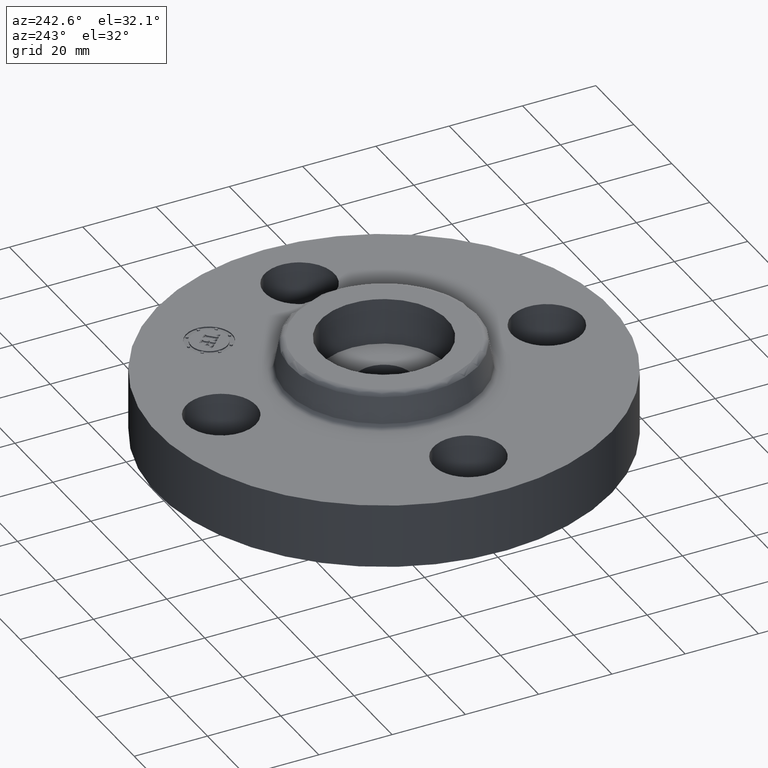
[diagram: clean part render]
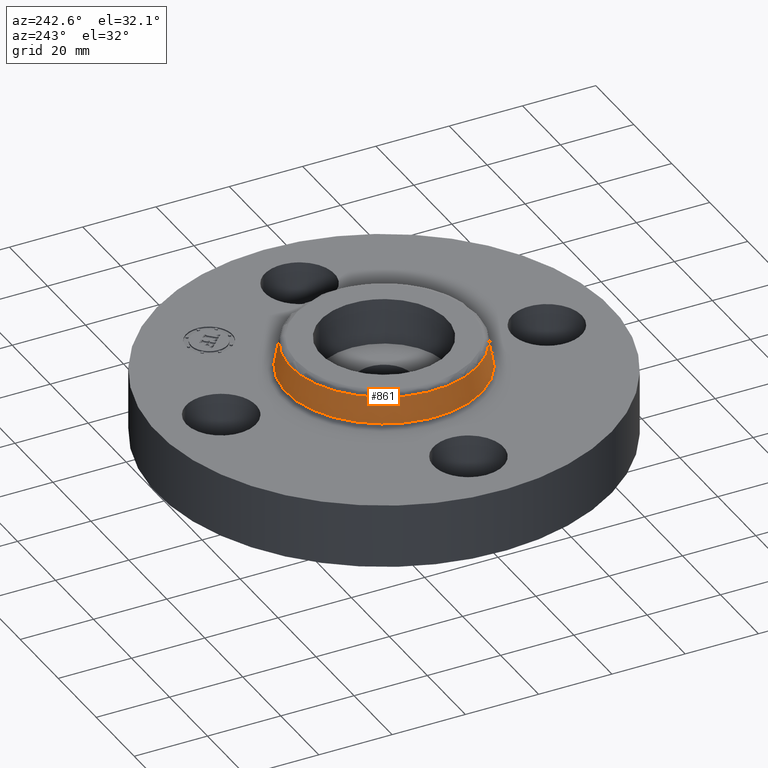
[diagram: same view with one face highlighted and labeled with its STEP entity id]
A machine part, auxiliary view. The second image highlights one B-rep face of the part: STEP entity #861.
In plain terms, the highlighted conical surface has half-angle 10 deg.
Its self-contained STEP definition (entity closure, byte-faithful):
#420=AXIS2_PLACEMENT_3D('Circle Axis2P3D',#418,#419,$) ;
#848=AXIS2_PLACEMENT_3D('Cone Axis2P3D',#845,#846,#847) ;
#852=AXIS2_PLACEMENT_3D('Circle Axis2P3D',#850,#851,$) ;
#384=CARTESIAN_POINT('Vertex',(0.481104249261,0.880655421136,1.01041889066)) ;
#386=CARTESIAN_POINT('Vertex',(-0.481104249261,-0.880655421136,1.01041889066)) ;
#418=CARTESIAN_POINT('Axis2P3D Location',(0.,0.,1.01041889066)) ;
#816=CARTESIAN_POINT('Vertex',(0.503999699238,0.922565261201,0.739581109345)) ;
#818=CARTESIAN_POINT('Vertex',(-0.503999699238,-0.922565261201,0.739581109344)) ;
#821=CARTESIAN_POINT('Line Origine',(0.492551974248,0.901610341165,0.874999999999)) ;
#826=CARTESIAN_POINT('Line Origine',(-0.492551974248,-0.901610341165,0.874999999999)) ;
#845=CARTESIAN_POINT('Axis2P3D Location',(0.,0.,1.01041889066)) ;
#850=CARTESIAN_POINT('Axis2P3D Location',(0.,0.,0.739581109343)) ;
#419=DIRECTION('Axis2P3D Direction',(-0.,0.,-0.0393700787402)) ;
#822=DIRECTION('Vector Direction',(0.00327761303565,0.00599963041827,-0.03877195878)) ;
#827=DIRECTION('Vector Direction',(-0.00327761303565,-0.00599963041827,-0.03877195878)) ;
#846=DIRECTION('Axis2P3D Direction',(0.,0.,-0.0393700787402)) ;
#847=DIRECTION('Axis2P3D XDirection',(-0.0188750212049,-0.0345504945626,0.)) ;
#851=DIRECTION('Axis2P3D Direction',(-0.,0.,-0.0393700787402)) ;
#823=VECTOR('Line Direction',#822,0.0393700787402) ;
#828=VECTOR('Line Direction',#827,0.0393700787402) ;
#856=ORIENTED_EDGE('',*,*,#854,.F.) ;
#857=ORIENTED_EDGE('',*,*,#830,.T.) ;
#858=ORIENTED_EDGE('',*,*,#422,.T.) ;
#859=ORIENTED_EDGE('',*,*,#825,.F.) ;
#861=ADVANCED_FACE('PartBody',(#860),#849,.T.) ;
#421=CIRCLE('generated circle',#420,1.00350150445) ;
#853=CIRCLE('generated circle',#852,1.05125751269) ;
#849=CONICAL_SURFACE('Cone',#848,1.00350150445,0.174532925199) ;
#422=EDGE_CURVE('',#387,#385,#421,.T.) ;
#825=EDGE_CURVE('',#817,#385,#824,.F.) ;
#830=EDGE_CURVE('',#819,#387,#829,.F.) ;
#854=EDGE_CURVE('',#819,#817,#853,.T.) ;
#855=EDGE_LOOP('',(#856,#857,#858,#859)) ;
#860=FACE_OUTER_BOUND('',#855,.T.) ;
#824=LINE('Line',#821,#823) ;
#829=LINE('Line',#826,#828) ;
#385=VERTEX_POINT('',#384) ;
#387=VERTEX_POINT('',#386) ;
#817=VERTEX_POINT('',#816) ;
#819=VERTEX_POINT('',#818) ;